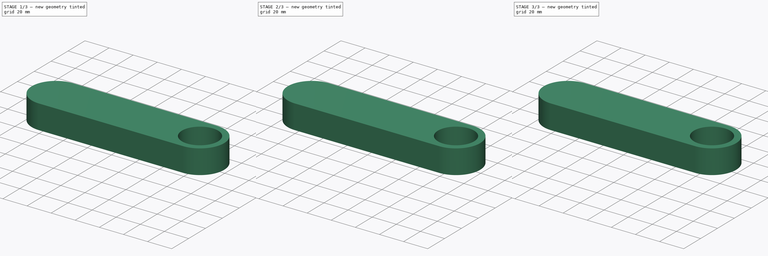
[diagram: build sequence overview — one tinted view per stage of 3, left to right]
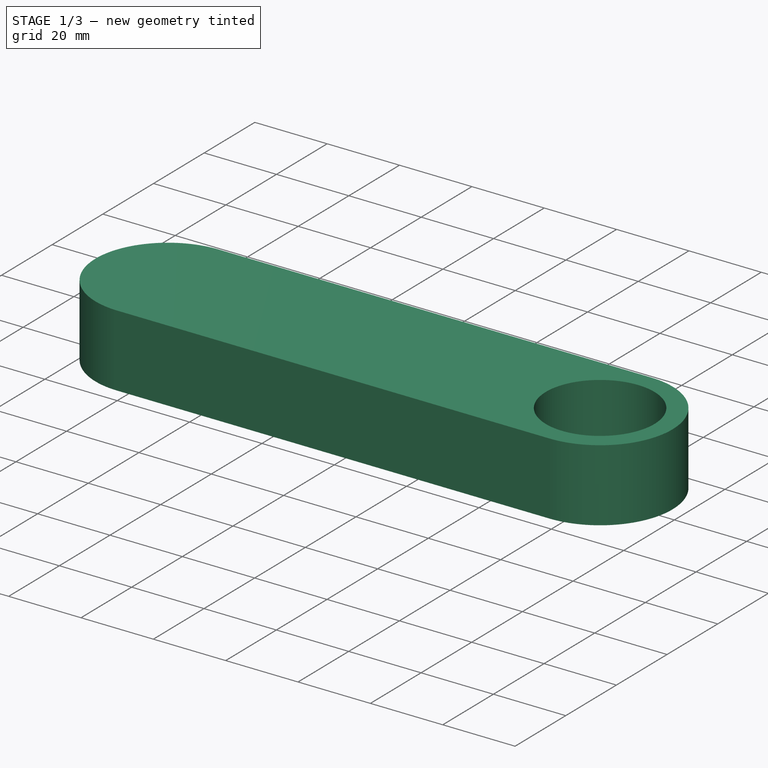
[diagram: stage 1 of 3 — iso view after this stage's code; geometry added in this stage tinted green]
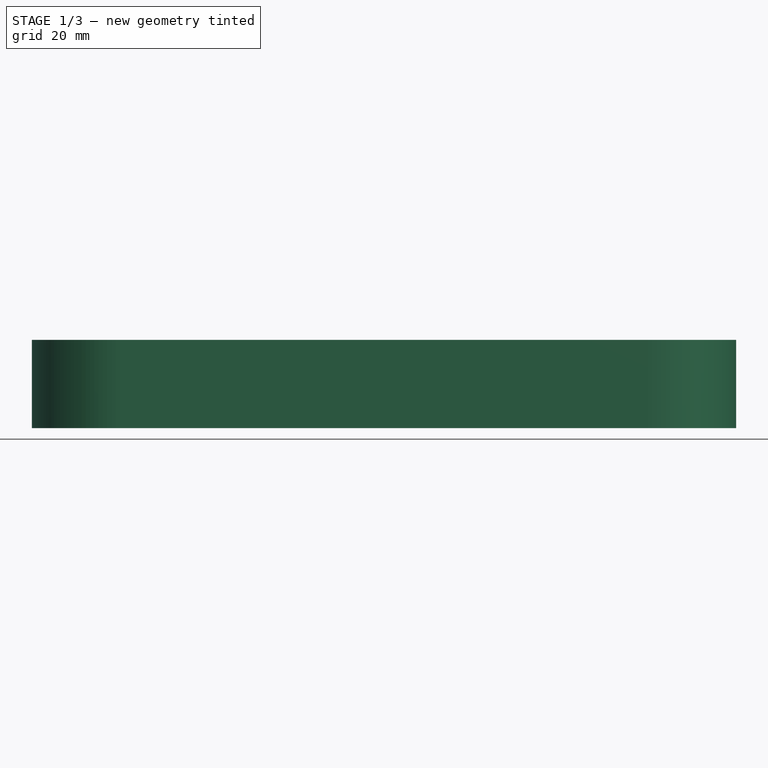
[diagram: stage 1 of 3 — front view after this stage's code; geometry added in this stage tinted green]
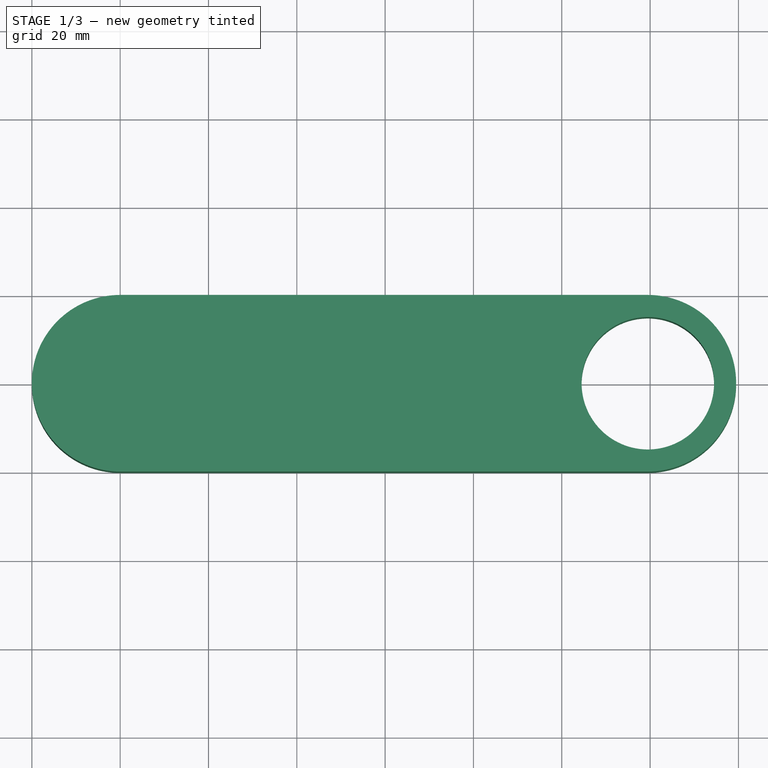
[diagram: stage 1 of 3 — top view after this stage's code; geometry added in this stage tinted green]
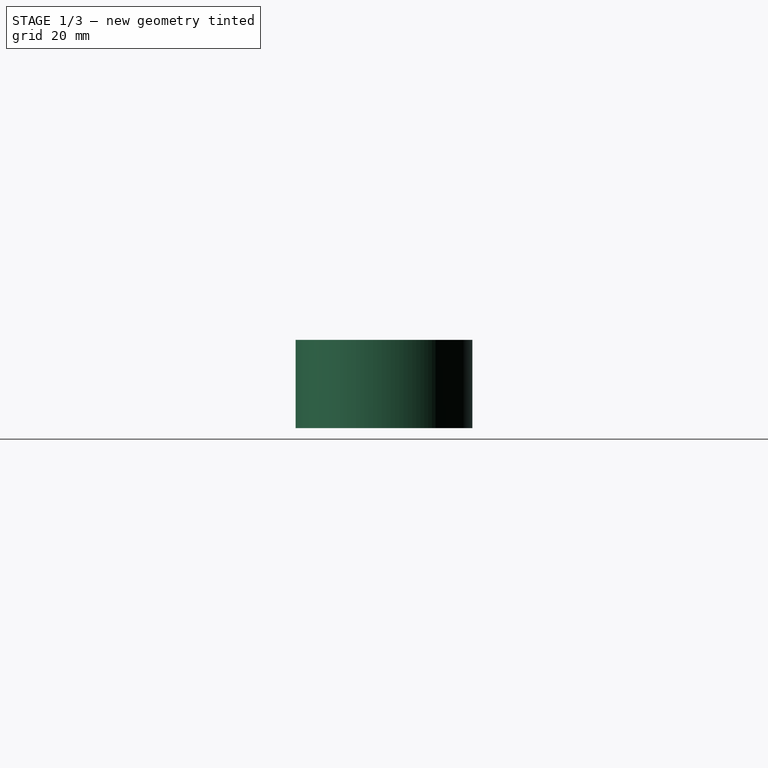
[diagram: stage 1 of 3 — right view after this stage's code; geometry added in this stage tinted green]
FCSTD DOCUMENT  (FreeCAD 0.22R35639 (Git))
Label: DoublePendulum
License: All rights reserved
LicenseURL: http://en.wikipedia.org/wiki/All_rights_reserved
objects: App::DocumentObjectGroupPython×56, PartDesign::CoordinateSystem×8, App::Part×4, Sketcher::SketchObject×3, PartDesign::Pad×3, PartDesign::Body×3, App::TextDocument×3, Part::Line×3, App::FeaturePython×3, Part::FeaturePython×2, App::DocumentObjectGroup×1, App::MaterialObjectPython×1, Part::Part2DObjectPython×1
note: 26 computed .brp shape members not serialized (recipe doc carries the construction recipe); baked Part::Feature solids carry a one-line shape summary decoded from their .brp

FEATURE [PartDesign::Body] Body002
  Group = -> [Sketch002,Pad002]
  Origin = -> Origin005
  Tip = -> Pad002
FEATURE [App::Part] Part002  label="Link2"
  Group = -> [Body002]
  Origin = -> Origin002
  Placement = pos=(301,0,0) rot=(0,0,1;0rad)
FEATURE [App::DocumentObjectGroup] Group  label="CAD"
  Group = -> [Part,Part001,Part002]
FEATURE [App::DocumentObjectGroupPython] MBD_animated_vectors  # scripted group (container) (typed FeaturePython)
FEATURE [App::DocumentObjectGroupPython] MBD_constitutive_laws  # scripted group (container) (typed FeaturePython)
FEATURE [App::DocumentObjectGroupPython] MBD_abstract_nodes  # scripted group (container) (typed FeaturePython)
FEATURE [App::DocumentObjectGroupPython] MBD_dummy_nodes  # scripted group (container) (typed FeaturePython)
FEATURE [App::DocumentObjectGroupPython] MBD_hydraulic_nodes  # scripted group (container) (typed FeaturePython)
FEATURE [App::DocumentObjectGroupPython] MBD_beam_elements  # scripted group (container) (typed FeaturePython)
FEATURE [App::DocumentObjectGroupPython] MBD_genel_clamps  # scripted group (container) (typed FeaturePython)
FEATURE [App::DocumentObjectGroupPython] MBD_genel_elements  # scripted group (container) (typed FeaturePython)
  Group = -> [MBD_genel_clamps]
FEATURE [App::DocumentObjectGroupPython] MBD_hydraulic_fluid_elements  # scripted group (container) (typed FeaturePython)
FEATURE [App::DocumentObjectGroupPython] MBD_hydraulic_elements  # scripted group (container) (typed FeaturePython)
  Group = -> [MBD_hydraulic_fluid_elements]
FEATURE [App::DocumentObjectGroupPython] MBD_angular_acceleration_joints  # scripted group (container) (typed FeaturePython)
FEATURE [App::DocumentObjectGroupPython] MBD_angular_velocity_joints  # scripted group (container) (typed FeaturePython)
FEATURE [App::DocumentObjectGroupPython] MBD_assembly_joints  # scripted group (container) (typed FeaturePython)
FEATURE [App::DocumentObjectGroupPython] MBD_coincidence_joints  # scripted group (container) (typed FeaturePython)
FEATURE [App::DocumentObjectGroupPython] MBD_cylindrical_joints  # scripted group (container) (typed FeaturePython)
FEATURE [App::DocumentObjectGroupPython] MBD_deformable_axial_joints  # scripted group (container) (typed FeaturePython)
FEATURE [App::DocumentObjectGroupPython] MBD_deformable_displacement_joints  # scripted group (container) (typed FeaturePython)
FEATURE [App::DocumentObjectGroupPython] MBD_deformable_hinge_joints  # scripted group (container) (typed FeaturePython)
FEATURE [App::DocumentObjectGroupPython] MBD_distance_joints  # scripted group (container) (typed FeaturePython)
FEATURE [App::DocumentObjectGroupPython] MBD_drive_hinge_joints  # scripted group (container) (typed FeaturePython)
FEATURE [App::DocumentObjectGroupPython] MBD_in_line_joints  # scripted group (container) (typed FeaturePython)
FEATURE [App::DocumentObjectGroupPython] MBD_in_plane_joints  # scripted group (container) (typed FeaturePython)
FEATURE [App::DocumentObjectGroupPython] MBD_linear_acceleration_joints  # scripted group (container) (typed FeaturePython)
FEATURE [App::DocumentObjectGroupPython] MBD_linear_velocity_joints  # scripted group (container) (typed FeaturePython)
FEATURE [App::DocumentObjectGroupPython] MBD_prismatic_joints  # scripted group (container) (typed FeaturePython)
FEATURE [App::DocumentObjectGroupPython] MBD_revolute_pin_joints  # scripted group (container) (typed FeaturePython)
FEATURE [App::DocumentObjectGroupPython] MBD_revolute_rotation_joints  # scripted group (container) (typed FeaturePython)
FEATURE [App::DocumentObjectGroupPython] MBD_shock_absorber_joints  # scripted group (container) (typed FeaturePython)
FEATURE [App::DocumentObjectGroupPython] MBD_slider_joints  # scripted group (container) (typed FeaturePython)
FEATURE [App::DocumentObjectGroupPython] MBD_spherical_hinge_joints  # scripted group (container) (typed FeaturePython)
FEATURE [App::DocumentObjectGroupPython] MBD_total_joints  # scripted group (container) (typed FeaturePython)
FEATURE [App::DocumentObjectGroupPython] MBD_total_pin_joints  # scripted group (container) (typed FeaturePython)
FEATURE [App::DocumentObjectGroupPython] MBD_viscous_body_joints  # scripted group (container) (typed FeaturePython)
FEATURE [App::DocumentObjectGroupPython] MBD_dummy_body_elements  # scripted group (container) (typed FeaturePython)
FEATURE [App::DocumentObjectGroupPython] MBD_gear_body_elements  # scripted group (container) (typed FeaturePython)
FEATURE [App::DocumentObjectGroupPython] MBD_structural_couple_elements  # scripted group (container) (typed FeaturePython)
FEATURE [App::DocumentObjectGroupPython] MBD_structural_force_elements  # scripted group (container) (typed FeaturePython)
FEATURE [App::DocumentObjectGroupPython] MBD_scalar_functions  # scripted group (container) (typed FeaturePython)
FEATURE [App::TextDocument] ELEMENT_input_file
  Text = <blob: 7157 chars omitted>
FEATURE [App::TextDocument] ELEMENT_input_file_aux
  Text = begin: data;\n     problem: initial value;\n end: data;\n\n set: real XL = 0.0;\n set: real XU = 4.0;\n set: real dX = 0.0001;\n\n begin: initial value;\n     initial time:   XL;\n     final time:     XU;\n     time step:      dX;\n     max iterations: 10;\n     tolerance:      1.e-6;\n     derivatives coefficient: auto;\n end: initial value;\n\n begin: control data;\n     abstract nodes: 2;\n     genels: 2;\n end: control data;\n\n     drive caller: 1, name, "drive: 1 ", cosine, 0.25, 3.14, 4.905, half, 0.0;\n\n set: integer NoAbs_X = 1;\n set: integer NoAbs_Y = 2;\n set: integer GeClamp_NoAbs_X = 1;\n set: integer GeClamp_NoAbs_Y = 2;\n\n begin: nodes;\n     abstract: NoAbs_X, algebraic, value, XL;\n     abstract: NoAbs_Y, algebraic, value, model::drive(1, Time);\n end: nodes;\n\n set: [dof, X, NoAbs_X, abstract, algebraic];\n\n begin: elements;\n     genel: GeClamp_NoAbs_X,\n         clamp,\n         NoAbs_X, abstract,\n         string, "Time+XL";\n\n     genel: GeClamp_NoAbs_Y,\n         clamp,\n         NoAbs_Y, abstract,\n         string, "model::drive(1, Time)";\n\n end: elements;
FEATURE [App::DocumentObjectGroupPython] MBD_input_files  # scripted group (container) (typed FeaturePython)
  Group = -> [ELEMENT_input_file,ELEMENT_input_file_aux]
FEATURE [App::TextDocument] ELEMENT_variables
FEATURE [App::DocumentObjectGroupPython] MBD_user_defined_variables  # scripted group (container) (typed FeaturePython)
  Group = -> [ELEMENT_variables]
FEATURE [Part::Line] ELEMENT_cmx
  AttacherType = Attacher::AttachEngine3D
  X1 = 3.6e-15
  X2 = 115
  Y1 = 1e-16
  Y2 = 1e-16
  Z1 = 10
  Z2 = 10
FEATURE [Part::Line] ELEMENT_cmy
  AttacherType = Attacher::AttachEngine3D
  X1 = 0
  X2 = 0
  Y1 = 0
  Y2 = 0
  Z1 = 0
  Z2 = 1
FEATURE [Part::Line] ELEMENT_cmz
  AttacherType = Attacher::AttachEngine3D
  X1 = 0
  X2 = 0
  Y1 = 0
  Y2 = 0
  Z1 = 0
  Z2 = 1
FEATURE [PartDesign::CoordinateSystem] ELEMENT_ground
  AttacherType = Attacher::AttachEngine3D
FEATURE [App::DocumentObjectGroupPython] MBD_global_reference_frame  # scripted group (container) (typed FeaturePython)
  Group = -> [ELEMENT_cmx,ELEMENT_cmy,ELEMENT_cmz,ELEMENT_ground]
FEATURE [App::FeaturePython] ELEMENT_parameters  # WARN: FeaturePython — macro-defined, semantics opaque (R4)
  assembly_max_iterations = 1000
  default_orientation = 0
  derivatives_coefficient = auto
  derivatives_max_iterations = 100
  derivatives_tolerance = 0.0001
  final_time = 4
  initial_position_stiffness = 1
  initial_time = 0
  initial_velocity_stiffness = 1
  integration_max_iterations = 100
  model = 0
  modules_to_load = 0
  omega_rotates = 0
  output_data = 0
  output_meter = 400
  path_to_ELEMENT_executable = <userpath>/.local/share/FreeCAD/Mod/FreeCAD-motion-workbench-master/mbdyn-1.7.3-executables/LinuxExecutable/mbdyn
  print = 0
  skip_initial_joint_assembly = 0
  solver = 0
  time_step = 0.0001
  tolerance = 1e-06
  type_of_path_to_ELEMENT_executable = 0
  type_of_path_to_run_time_loadable_modules = 0
  type_of_working_directory = 0
  units = 0
FEATURE [App::FeaturePython] ELEMENT_animation  # WARN: FeaturePython — macro-defined, semantics opaque (R4)
  animationClicked = false
  assembled = true
  association0 = none
  association1 = none
  association2 = none
  association3 = none
  association4 = none
  association5 = none
  association6 = none
  association7 = none
  association8 = none
  association9 = none
  bodies_line_width = 1
  bodies_point_size = 4
  characteristic_length = 660.512
  continous = true
  current_time = 0
  current_time_step = 0
  follow_selected_object = false
  highlight_element = true
  objects_to_animate = 0
  speed = 75
  stop_at_time = 0
  stop_at_time_step = 0
  subAssembly = true
  transparency_when_assembled = 0
  transparency_when_exploded = 50
  zoon_when_contracted = 0.5
  zoon_when_expanded = 1
FEATURE [App::DocumentObjectGroupPython] MBD_simulation_parameters  # scripted group (container) (typed FeaturePython)
  Group = -> [ELEMENT_parameters,ELEMENT_animation]
FEATURE [Part::FeaturePython] ELEMENT_static_body_1  # WARN: FeaturePython — macro-defined, semantics opaque (R4)
  Placement = pos=(0,0,-1.8e-15) rot=(0,0,1;0rad)
  absolute_center_of_mass_X = -2.3e-15
  absolute_center_of_mass_Y = 2e-16
  absolute_center_of_mass_Z = 10
  base_entity = Part
  label = 1
  type = static
FEATURE [App::DocumentObjectGroupPython] MBD_static_body_elements  # scripted group (container) (typed FeaturePython)
  Group = -> [ELEMENT_static_body_1]
FEATURE [PartDesign::CoordinateSystem] ELEMENT_structural_static_1
  AttacherType = Attacher::AttachEngine3D
  Placement = pos=(-2.3e-15,2e-16,10) rot=(0,0,1;0rad)
  absolute_angular_velocity_X = 0
  absolute_angular_velocity_Y = 0
  absolute_angular_velocity_Z = 0
  absolute_orientation_matrix = 3, 0.0, 0.0, 1.0, 2, 0.0, 1.0, 0.0
  absolute_position_X = -2.3e-15
  absolute_position_Y = 2e-16
  absolute_position_Z = 10
  absolute_velocity_X = 0
  absolute_velocity_Y = 0
  absolute_velocity_Z = 0
  base_entity = -> ELEMENT_static_body_1
  initial_conditions_reference_system_angular_velocity = 0
  initial_conditions_reference_system_velocity = 0
  label = 1
  offset_pitch = 0
  offset_reference_system_orientation = 0
  offset_reference_system_position = 0
  offset_roll = 0
  offset_x = 0
  offset_y = 0
  offset_yaw = 0
  offset_z = 0
  placement_method = 0
  plugin_variables = none
  type = static
FEATURE [App::DocumentObjectGroupPython] MBD_structural_static_nodes  # scripted group (container) (typed FeaturePython)
  Group = -> [ELEMENT_structural_static_1]
FEATURE [Part::FeaturePython] ELEMENT_rigid_body_2  # WARN: FeaturePython — macro-defined, semantics opaque (R4)
  FirstAxisOfInertia = (0,0,1)
  Ixx = 1126.52
  Iyy = 1042.88
  Izz = 132.323
  Placement = pos=(-115,0,3.6e-15) rot=(0,0,1;0rad)
  SecondAxisOfInertia = (0,1,0)
  ThirdAxisOfInertia = (1,0,0)
  absolute_center_of_mass_X = 59.7435
  absolute_center_of_mass_Y = -4e-16
  absolute_center_of_mass_Z = 10
  base_entity = Part001
  density = 7.9e-06
  ixx = 1.42597e+08
  iyy = 1.3201e+08
  izz = 1.67497e+07
  label = 2
  mass = 0.730339
  material = Steel-Generic
  material_definition = 0
  material_object = ELEMENT_material_2
  node = 2
  relative_center_of_mass_X = 0
  relative_center_of_mass_Y = 0
  relative_center_of_mass_Z = 0
  type = rigid
  volume = 92447.9
FEATURE [App::DocumentObjectGroupPython] MBD_rigid_body_elements  # scripted group (container) (typed FeaturePython)
  Group = -> [ELEMENT_rigid_body_2]
FEATURE [App::Part] MBD_body_elements
  Group = -> [MBD_dummy_body_elements,MBD_rigid_body_elements,MBD_gear_body_elements,MBD_static_body_elements,ELEMENT_static_body_1,ELEMENT_rigid_body_2]
  Origin = -> Origin006
FEATURE [App::MaterialObjectPython] ELEMENT_material_2  # material (typed FeaturePython)
  Category = 0
  Material = Density=7900.00 kg/m^3; Name=Steel-Generic
FEATURE [App::DocumentObjectGroupPython] MBD_materials  # scripted group (container) (typed FeaturePython)
  Group = -> [ELEMENT_material_2]
FEATURE [PartDesign::CoordinateSystem] ELEMENT_structural_dynamic_2
  AttacherType = Attacher::AttachEngine3D
  Placement = pos=(59.7435,-4e-16,10) rot=(0,0,1;0rad)
  absolute_angular_velocity_X = 0
  absolute_angular_velocity_Y = 0
  absolute_angular_velocity_Z = 0
  absolute_orientation_matrix = 3, 0.0, 0.0, 1.0, 2, 0.0, 1.0, 0.0
  absolute_position_X = 59.7435
  absolute_position_Y = -4e-16
  absolute_position_Z = 10
  absolute_velocity_X = 0
  absolute_velocity_Y = 0
  absolute_velocity_Z = 0
  base_entity = -> ELEMENT_rigid_body_2
  initial_conditions_reference_system_angular_velocity = 0
  initial_conditions_reference_system_velocity = 0
  label = 2
  offset_pitch = 0
  offset_reference_system_orientation = 0
  offset_reference_system_position = 0
  offset_roll = 0
  offset_x = 0
  offset_y = 0
  offset_yaw = 0
  offset_z = 0
  placement_method = 0
  plugin_variables = none
  type = dynamic
FEATURE [App::DocumentObjectGroupPython] MBD_structural_dynamic_nodes  # scripted group (container) (typed FeaturePython)
  Group = -> [ELEMENT_structural_dynamic_2]
FEATURE [App::DocumentObjectGroupPython] MBD_nodes  # scripted group (container) (typed FeaturePython)
  Group = -> [MBD_abstract_nodes,MBD_dummy_nodes,MBD_structural_dynamic_nodes,MBD_hydraulic_nodes,MBD_structural_static_nodes]
FEATURE [Part::Part2DObjectPython] ELEMENT_gravity_1  # Draft 2D object (typed FeaturePython)
  Area = 0
  ChamferSize = 0
  Closed = false
  End = (0,-330.256,0)
  FilletRadius = 0
  Length = 330.256
  MakeFace = true
  Points = (2) [(0,0,0),(0,-330.256,0)]
  Start = (0,0,0)
  Subdivisions = 0
  direction = 0.0, -1.0, 0.0
  driven_element = false
  driven_element_expression = Time < 4.
  gravity_acceleration = 9.81
  label = 1
  type = uniform
FEATURE [App::DocumentObjectGroupPython] MBD_gravity_elements  # scripted group (container) (typed FeaturePython)
  Group = -> [ELEMENT_gravity_1]
FEATURE [PartDesign::CoordinateSystem] ELEMENT_marker_2_1
  AttacherType = Attacher::AttachEngine3D
  Placement = pos=(1.83073e-07,1e-16,10) rot=(0,0,1;0rad)
  base_entity = -> ELEMENT_rigid_body_2
  label = 2
  offset_pitch = 0
  offset_reference_system_orientation = 0
  offset_reference_system_position = 0
  offset_roll = 0
  offset_x = 0
  offset_y = 0
  offset_yaw = 0
  offset_z = 0
  placement_method = 1
  position_reference_1 = -> ELEMENT_rigid_body_2 [Face5]
FEATURE [App::FeaturePython] ELEMENT_drive_1  # WARN: FeaturePython — macro-defined, semantics opaque (R4)
  a_final_time = 2
  a_initial_time = 1
  a_slope = 2
  amplitude = 4.905
  angular_vel = 3.14
  const_coef = 9.807
  cubic_coef = 1
  d_final_time = 5
  d_initial_time = 4
  d_slope = -2
  expression = cosine, 0.25, 3.14, 4.905, half, 0.0
  final_time = 4
  initial_time = 0.25
  initial_value = 0
  label = 1
  linear_coef = 1
  number_of_cycles = 2
  parabolic_coef = 1
  slope = 0.1
  slope_coef = 0.1
  step_value = 10
  steps_between_spikes = 10
  type = 1
FEATURE [App::DocumentObjectGroupPython] MBD_drives_and_drive_callers  # scripted group (container) (typed FeaturePython)
  Group = -> [ELEMENT_drive_1]
FEATURE [PartDesign::CoordinateSystem] ELEMENT_marker_2_2
  AttacherType = Attacher::AttachEngine3D
  Placement = pos=(1.83073e-07,1e-16,10) rot=(0,0,1;0rad)
  base_entity = -> ELEMENT_rigid_body_2
  label = 2
  offset_pitch = 0
  offset_reference_system_orientation = 0
  offset_reference_system_position = 0
  offset_roll = 0
  offset_x = 0
  offset_y = 0
  offset_yaw = 0
  offset_z = 0
  placement_method = 1
  position_reference_1 = -> ELEMENT_rigid_body_2 [Face5]
FEATURE [PartDesign::CoordinateSystem] ELEMENT_clamp_joint_1
  AttacherType = Attacher::AttachEngine3D
  Placement = pos=(-2.3e-15,2e-16,10) rot=(0,0,1;0rad)
  absolute_orientation_matrix = 3, 0.0, 0.0, 1.0, 2, 0.0, 1.0, 0.0
  absolute_pin_position_X = -2.3e-15
  absolute_pin_position_Y = 2e-16
  absolute_pin_position_Z = 10
  assembly_joint = false
  base_entity = -> ELEMENT_static_body_1
  driven_element = false
  driven_element_expression = Time <= 1.0
  group = 0
  joint = clamp
  joint_activation = 0
  label = 1
  plugin_variables = none
FEATURE [App::DocumentObjectGroupPython] MBD_clamp_joints  # scripted group (container) (typed FeaturePython)
  Group = -> [ELEMENT_clamp_joint_1]
FEATURE [PartDesign::CoordinateSystem] ELEMENT_marker_2_3
  AttacherType = Attacher::AttachEngine3D
  Placement = pos=(1.83073e-07,1e-16,10) rot=(0,0,1;0rad)
  base_entity = -> ELEMENT_rigid_body_2
  label = 2
  offset_pitch = 0
  offset_reference_system_orientation = 0
  offset_reference_system_position = 0
  offset_roll = 0
  offset_x = 0
  offset_y = 0
  offset_yaw = 0
  offset_z = 0
  placement_method = 1
  position_reference_1 = -> ELEMENT_rigid_body_2 [Face5]
FEATURE [App::DocumentObjectGroupPython] MBD_markers  # scripted group (container) (typed FeaturePython)
  Group = -> [ELEMENT_marker_2_1,ELEMENT_marker_2_2,ELEMENT_marker_2_3]
FEATURE [PartDesign::CoordinateSystem] ELEMENT_hinge_joint_2_3
  AttacherType = Attacher::AttachEngine3D
  Placement = pos=(3.6e-15,1e-16,10) rot=(0,0,1;0rad)
  absolute_pin_position_X = 3.6e-15
  absolute_pin_position_Y = 1e-16
  absolute_pin_position_Z = 10
  action_entity = -> ELEMENT_marker_2_3
  angular_motion_expression = 0
  assembly_joint = false
  base_entity = -> ELEMENT_static_body_1
  driven_element_expression = Time <= 1.0
  hinge_direction = 0.0, 0.0, 1.0
  impose_angular_motion = 0
  initial_angle = 0
  initial_angular_velocity = 0
  joint = hinge
  joint_activation = 0
  label = 2_3
  offset_pitch = 0
  offset_reference_system_orientation = 0
  offset_reference_system_position = 0
  offset_roll = 0
  offset_x = 0
  offset_y = 0
  offset_yaw = 0
  offset_z = 0
  placement_method = 1
  plugin_variables = none
  position_reference_1 = -> ELEMENT_static_body_1 [Face1]
  rel_rot_orientation_1 = 3, 0.0, 0.0, 1.0, 2, guess
  rel_rot_orientation_2 = 3, 0.0, 0.0, 1.0, 2, guess
  relative_pin_orientation_matrix_1 = 3, 0.0, 0.0, 1.0, 2, 0.0, 1.0, 0.0
  relative_pin_orientation_matrix_2 = 3, 0.0, 0.0, 1.0, 2, 0.0, 1.0, 0.0
  relative_pin_position_1_X = 5.9e-15
  relative_pin_position_1_Y = -1e-16
  relative_pin_position_1_Z = -1.8e-15
  relative_pin_position_2_X = -59.7435
  relative_pin_position_2_Y = 5e-16
  relative_pin_position_2_Z = -3.6e-15
  rotation_axis = 0., 0., 1.
  rotational_stiffness = 40
  rotational_viscosity = 1e-05
FEATURE [App::DocumentObjectGroupPython] MBD_hinge_joints  # scripted group (container) (typed FeaturePython)
  Group = -> [ELEMENT_hinge_joint_2_3]
FEATURE [App::DocumentObjectGroupPython] MBD_joint_elements  # scripted group (container) (typed FeaturePython)
  Group = -> [MBD_angular_acceleration_joints,MBD_angular_velocity_joints,MBD_assembly_joints,MBD_clamp_joints,MBD_coincidence_joints,MBD_cylindrical_joints,MBD_deformable_axial_joints,MBD_deformable_displacement_joints,MBD_deformable_hinge_joints,MBD_distance_joints,MBD_drive_hinge_joints,MBD_in_line_joints,MBD_in_plane_joints,MBD_linear_acceleration_joints,MBD_linear_velocity_joints,MBD_prismatic_joints,+9 more]
FEATURE [App::DocumentObjectGroupPython] MBD_elements  # scripted group (container) (typed FeaturePython)
  Group = -> [MBD_beam_elements,MBD_body_elements,MBD_genel_elements,MBD_gravity_elements,MBD_hydraulic_elements,MBD_joint_elements,MBD_structural_couple_elements,MBD_structural_force_elements]
FEATURE [App::DocumentObjectGroupPython] MBD_simulation  # scripted group (container) (typed FeaturePython)
  Group = -> [MBD_animated_vectors,MBD_constitutive_laws,MBD_drives_and_drive_callers,MBD_global_reference_frame,MBD_input_files,MBD_materials,MBD_markers,MBD_nodes,MBD_elements,MBD_simulation_parameters,MBD_scalar_functions,MBD_user_defined_variables]
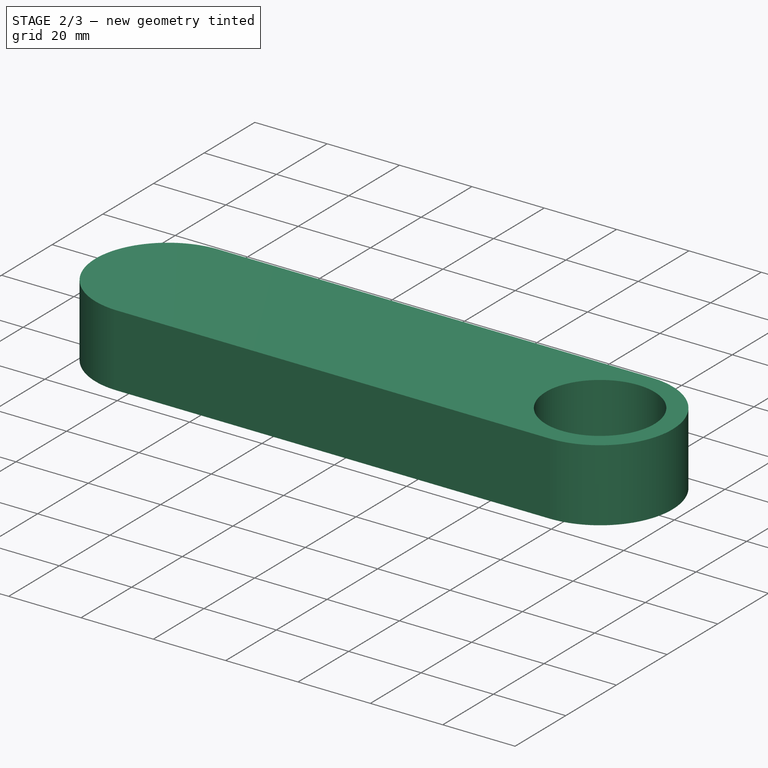
[diagram: stage 2 of 3 — iso view after this stage's code; geometry added in this stage tinted green]
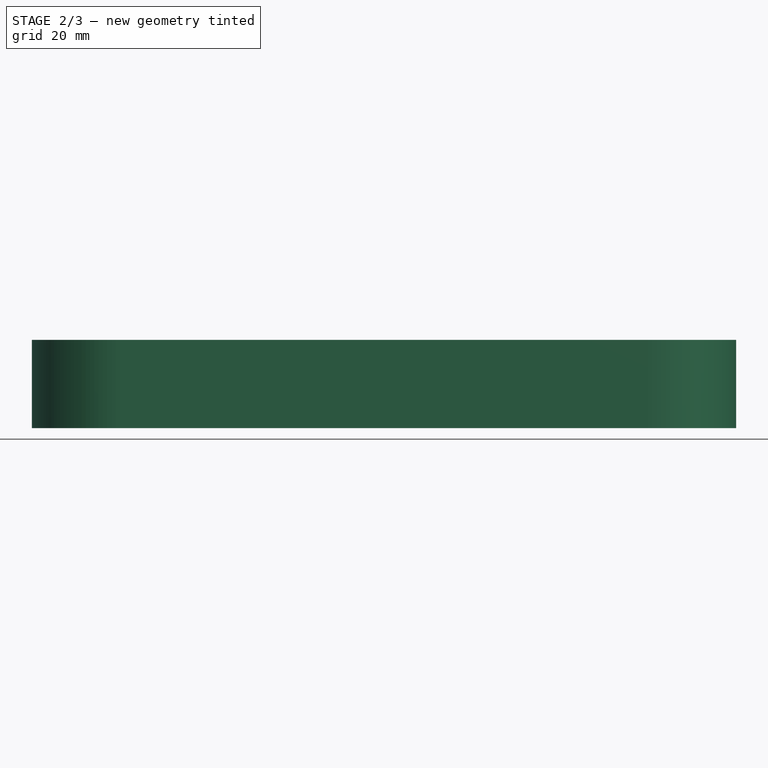
[diagram: stage 2 of 3 — front view after this stage's code; geometry added in this stage tinted green]
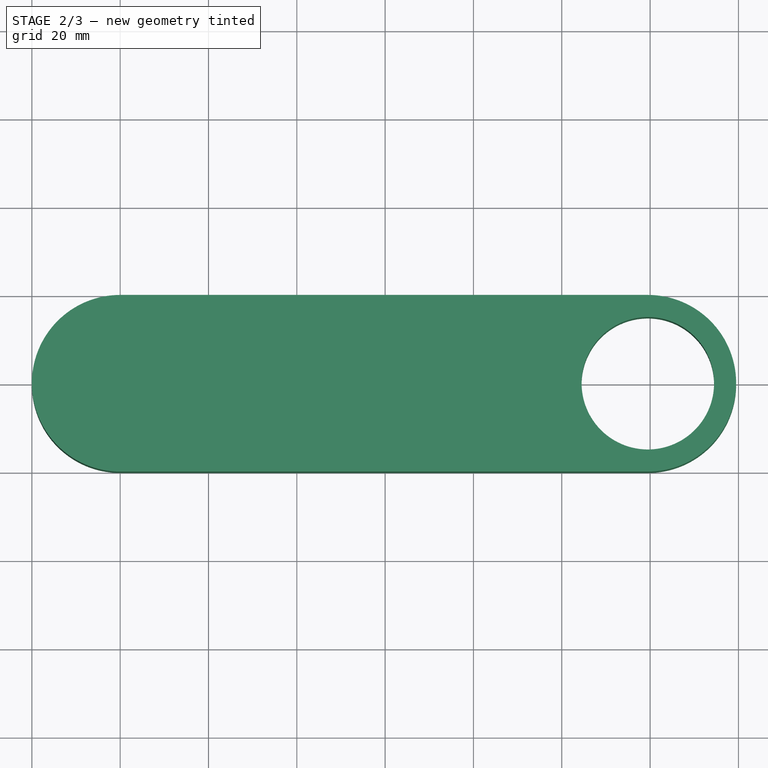
[diagram: stage 2 of 3 — top view after this stage's code; geometry added in this stage tinted green]
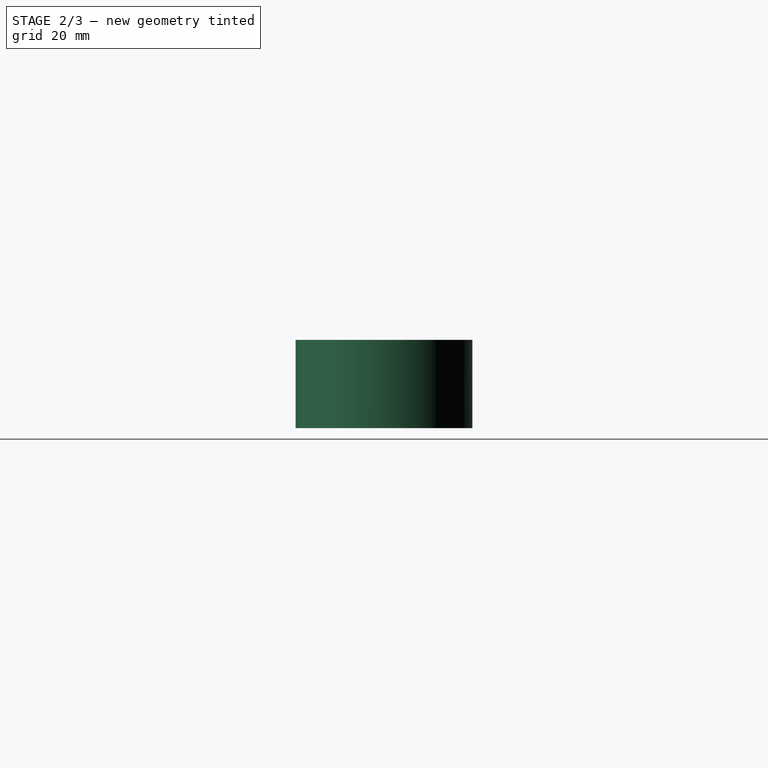
[diagram: stage 2 of 3 — right view after this stage's code; geometry added in this stage tinted green]
FEATURE [PartDesign::Body] Body001
  Group = -> [Sketch001,Pad001]
  Origin = -> Origin004
  Tip = -> Pad001
FEATURE [App::Part] Part001  label="Link1"
  Group = -> [Body001]
  Origin = -> Origin
  Placement = pos=(115,0,0) rot=(0,0,1;0rad)
FEATURE [Sketcher::SketchObject] Sketch002
  FullyConstrained = false
  MapMode = 5
  Support = -> [XY_Plane005]
  sketch-geometry (6):
    g0: Circle CenterX=0 CenterY=0 CenterZ=0 NormalX=0 NormalY=0 NormalZ=1 AngleXU=0 Radius=15
    g1: ArcOfCircle CenterX=0 CenterY=0 CenterZ=0 NormalX=0 NormalY=0 NormalZ=1 AngleXU=0 Radius=20 StartAngle=1.5708 EndAngle=4.71239
    g2: ArcOfCircle CenterX=119.487 CenterY=0 CenterZ=0 NormalX=0 NormalY=0 NormalZ=1 AngleXU=0 Radius=20 StartAngle=4.71239 EndAngle=7.85398
    g3: LineSegment StartX=-3.2e-15 StartY=20 StartZ=0 EndX=119.487 EndY=20 EndZ=0
    g4: LineSegment StartX=-3.7e-15 StartY=-20 StartZ=0 EndX=119.487 EndY=-20 EndZ=0
    g5: Circle CenterX=119.487 CenterY=0 CenterZ=0 NormalX=0 NormalY=0 NormalZ=1 AngleXU=0 Radius=15
  constraints (12):
    c: Coincident(g0,g-1)
    c: Diameter(g0) = 30
    c: Tangent(g1,g3) = 1.5708
    c: Tangent(g1,g4) = -1.5708
    c: Tangent(g2,g3) = 1.5708
    c: Tangent(g2,g4) = -1.5708
    c: Equal(g1,g2)
    c: Coincident(g1,g0)
    c: Radius(g2) = 20
    c: PointOnObject(g2,g-1)
    c: Coincident(g5,g2)
    c: Equal(g5,g0)
FEATURE [PartDesign::Pad] Pad002
  Direction = (0,0,1)
  Length = 20
  Length2 = 10
  Profile = -> Sketch002
  ReferenceAxis = -> Sketch002 [N_Axis]
  Type = 0
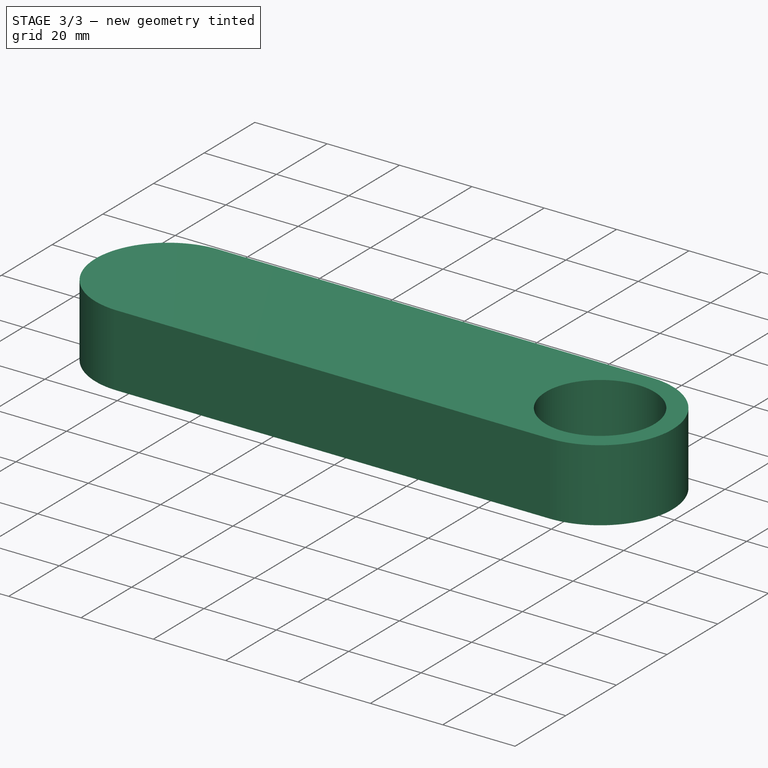
[diagram: stage 3 of 3 — iso view after this stage's code; geometry added in this stage tinted green]
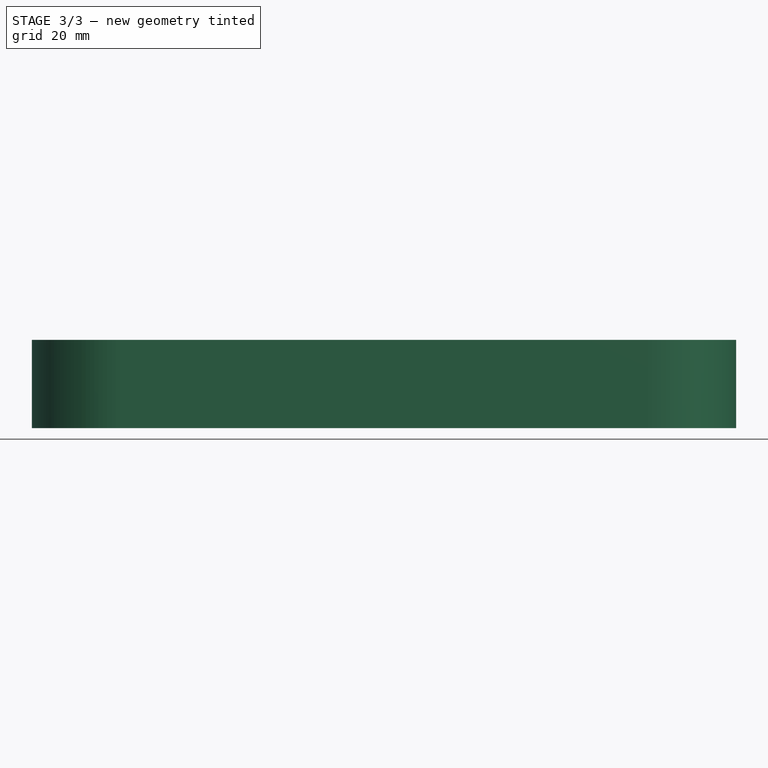
[diagram: stage 3 of 3 — front view after this stage's code; geometry added in this stage tinted green]
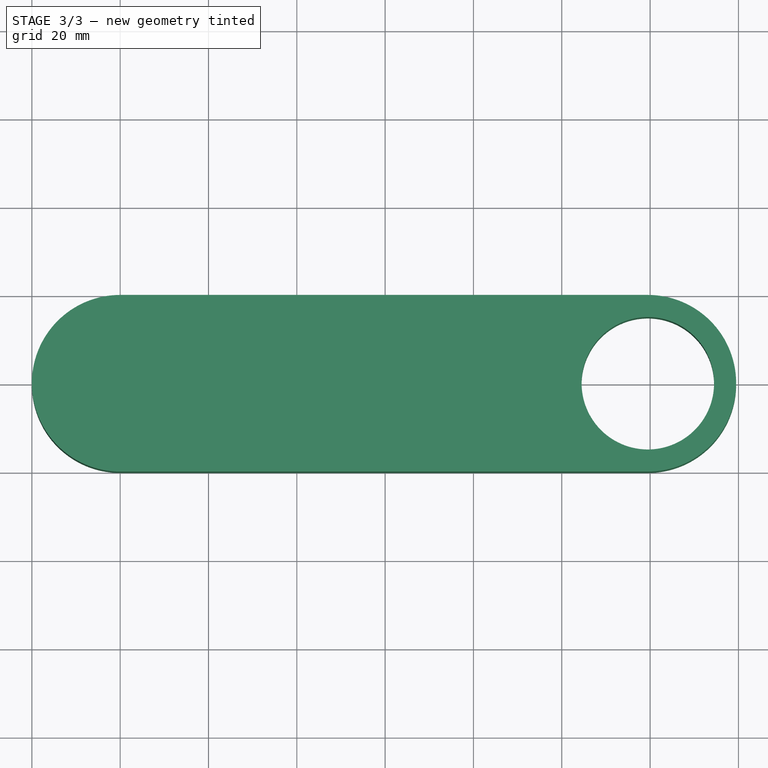
[diagram: stage 3 of 3 — top view after this stage's code; geometry added in this stage tinted green]
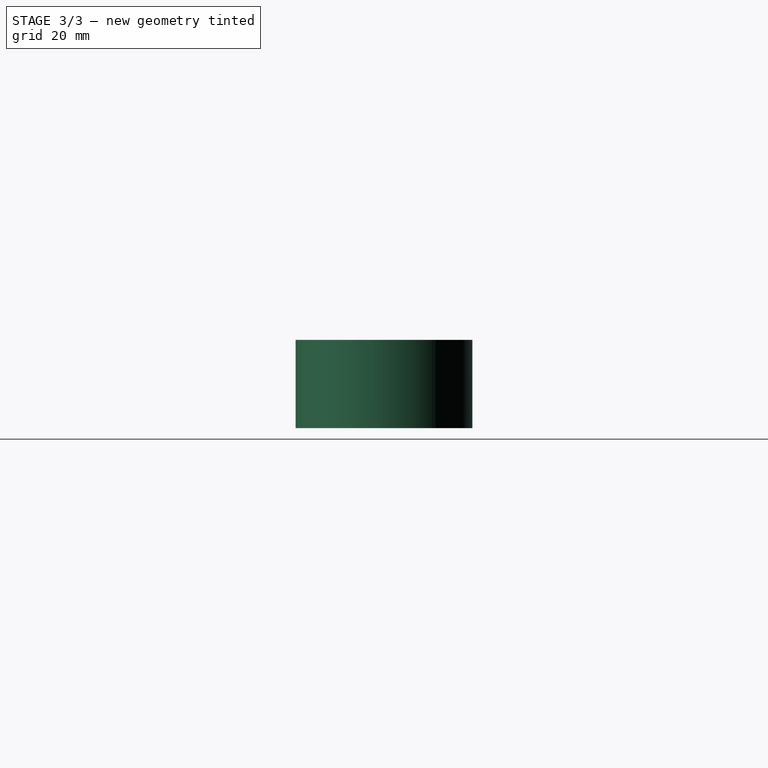
[diagram: stage 3 of 3 — right view after this stage's code; geometry added in this stage tinted green]
FEATURE [Sketcher::SketchObject] Sketch
  FullyConstrained = true
  MapMode = 5
  Support = -> [XY_Plane003]
  sketch-geometry (1):
    g0: Circle CenterX=0 CenterY=0 CenterZ=0 NormalX=0 NormalY=0 NormalZ=1 AngleXU=0 Radius=15
  constraints (2):
    c: Coincident(g0,g-1)
    c: Diameter(g0) = 30
FEATURE [PartDesign::Pad] Pad
  Direction = (0,0,1)
  Length = 20
  Length2 = 10
  Profile = -> Sketch
  ReferenceAxis = -> Sketch [N_Axis]
  Type = 0
FEATURE [PartDesign::Body] Body
  Group = -> [Sketch,Pad]
  Origin = -> Origin003
  Tip = -> Pad
FEATURE [App::Part] Part  label="Pin"
  Group = -> [Body]
  Origin = -> Origin001
FEATURE [Sketcher::SketchObject] Sketch001
  FullyConstrained = false
  MapMode = 5
  Support = -> [XY_Plane004]
  sketch-geometry (6):
    g0: Circle CenterX=0 CenterY=0 CenterZ=0 NormalX=0 NormalY=0 NormalZ=1 AngleXU=0 Radius=15
    g1: ArcOfCircle CenterX=0 CenterY=0 CenterZ=0 NormalX=0 NormalY=0 NormalZ=1 AngleXU=0 Radius=20 StartAngle=1.5708 EndAngle=4.71239
    g2: ArcOfCircle CenterX=119.487 CenterY=0 CenterZ=0 NormalX=0 NormalY=0 NormalZ=1 AngleXU=0 Radius=20 StartAngle=4.71239 EndAngle=7.85398
    g3: LineSegment StartX=-3.2e-15 StartY=20 StartZ=0 EndX=119.487 EndY=20 EndZ=0
    g4: LineSegment StartX=-3.7e-15 StartY=-20 StartZ=0 EndX=119.487 EndY=-20 EndZ=0
    g5: Circle CenterX=119.487 CenterY=0 CenterZ=0 NormalX=0 NormalY=0 NormalZ=1 AngleXU=0 Radius=15
  constraints (12):
    c: Coincident(g0,g-1)
    c: Diameter(g0) = 30
    c: Tangent(g1,g3) = 1.5708
    c: Tangent(g1,g4) = -1.5708
    c: Tangent(g2,g3) = 1.5708
    c: Tangent(g2,g4) = -1.5708
    c: Equal(g1,g2)
    c: Coincident(g1,g0)
    c: Radius(g2) = 20
    c: PointOnObject(g2,g-1)
    c: Coincident(g5,g2)
    c: Equal(g5,g0)
FEATURE [PartDesign::Pad] Pad001
  Direction = (0,0,1)
  Length = 20
  Length2 = 10
  Profile = -> Sketch001
  ReferenceAxis = -> Sketch001 [N_Axis]
  Type = 0
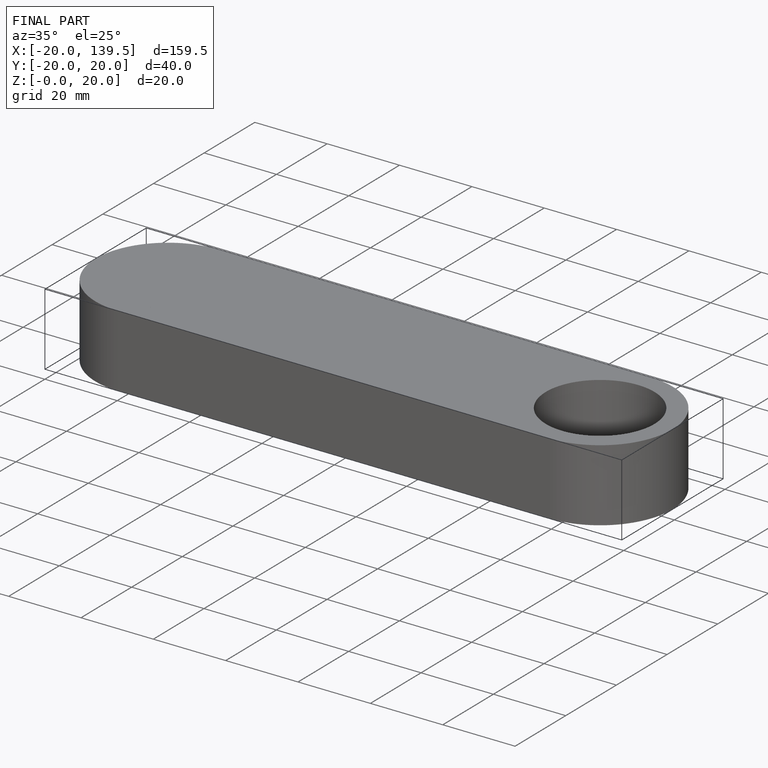
[diagram: finished part — iso view with bounding-box wireframe]
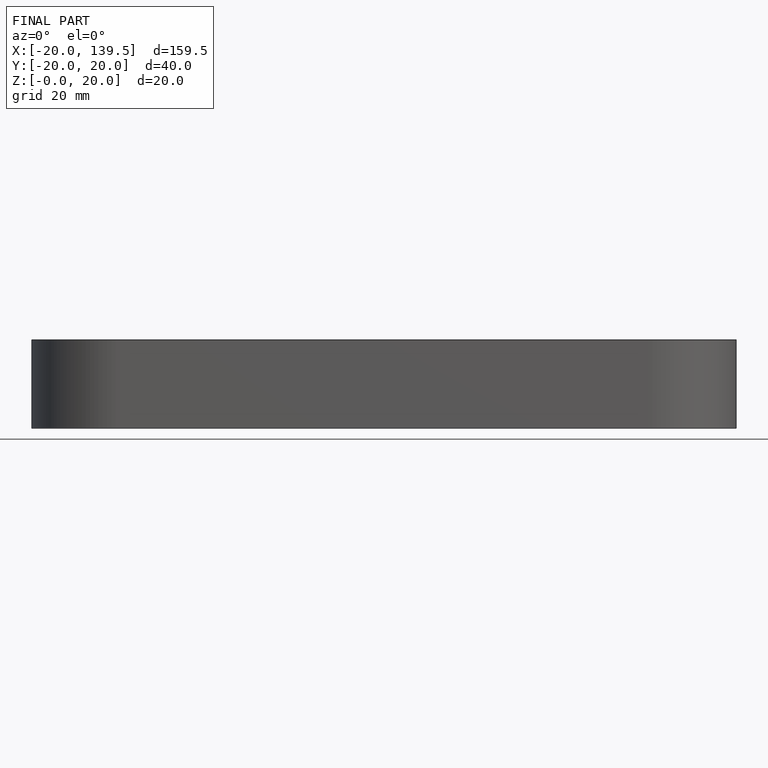
[diagram: finished part — front view with bounding-box wireframe]
